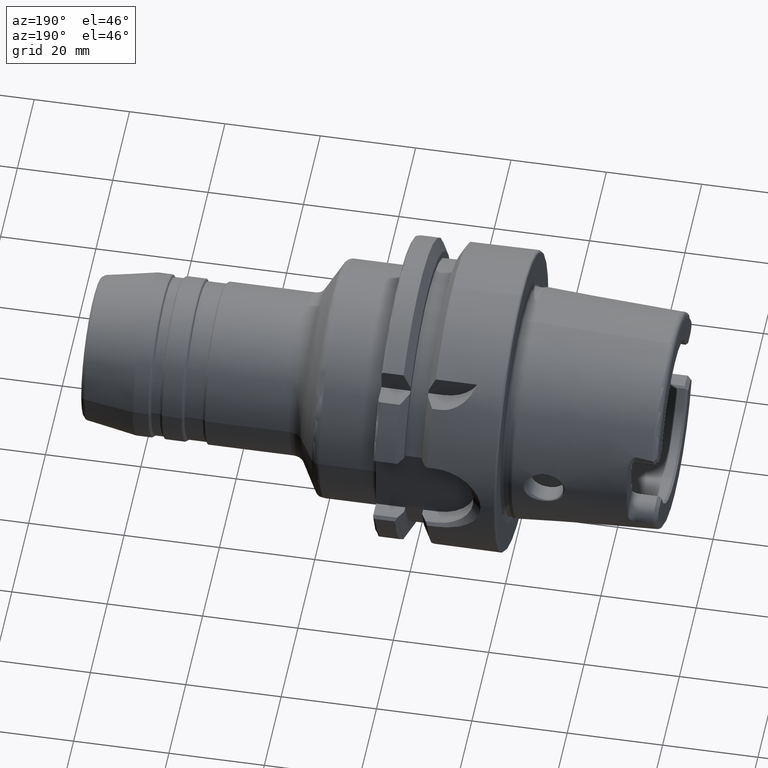
[diagram: clean part render]
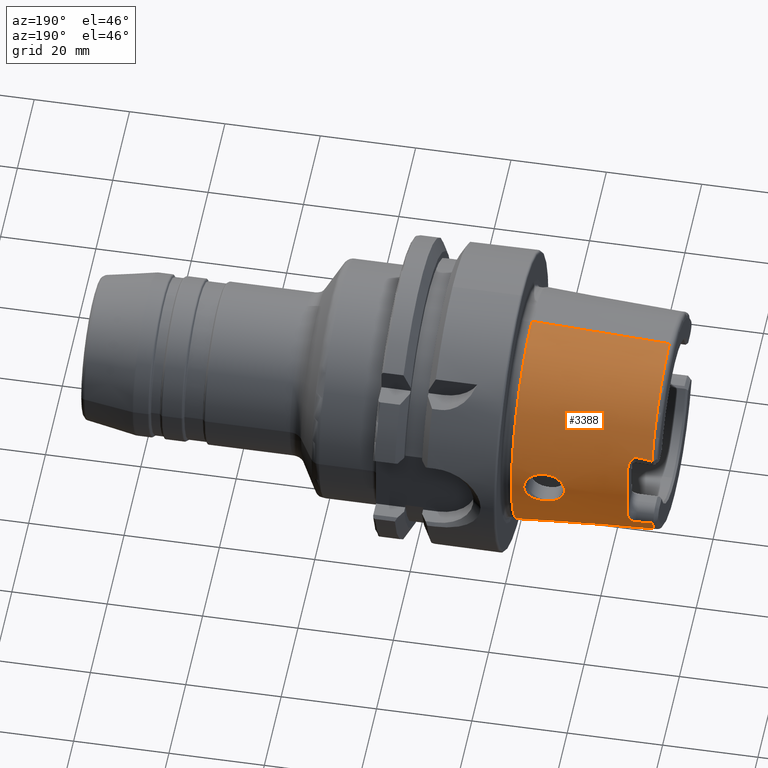
[diagram: same view with one face highlighted and labeled with its STEP entity id]
A machine part, auxiliary view. The second image highlights one B-rep face of the part: STEP entity #3388.
In plain terms, the highlighted conical surface has half-angle 2.868 deg.
Its self-contained STEP definition (entity closure, byte-faithful):
#2=CARTESIAN_POINT('',(-3.086004333271E1,0.E0,0.E0));
#3=DIRECTION('',(-1.E0,0.E0,0.E0));
#4=DIRECTION('',(0.E0,9.163649919573E-1,-4.003438540993E-1));
#5=AXIS2_PLACEMENT_3D('',#2,#3,#4);
#7=CARTESIAN_POINT('',(-2.000078966146E0,0.E0,0.E0));
#8=DIRECTION('',(-1.E0,0.E0,0.E0));
#9=DIRECTION('',(0.E0,0.E0,1.E0));
#10=AXIS2_PLACEMENT_3D('',#7,#8,#9);
#12=CARTESIAN_POINT('',(-3.086004333271E1,0.E0,0.E0));
#13=DIRECTION('',(-1.E0,0.E0,0.E0));
#14=DIRECTION('',(0.E0,0.E0,1.E0));
#15=AXIS2_PLACEMENT_3D('',#12,#13,#14);
#17=CARTESIAN_POINT('',(-3.086004333271E1,2.086981840766E1,9.117659021249E0));
#18=CARTESIAN_POINT('',(-3.053429817740E1,2.087026471920E1,9.157401052476E0));
#19=CARTESIAN_POINT('',(-2.990615519016E1,2.086951532374E1,9.237289499635E0));
#20=CARTESIAN_POINT('',(-2.903611322261E1,2.086332510594E1,9.358289114529E0));
#21=CARTESIAN_POINT('',(-2.823210310041E1,2.085175075012E1,9.481799081900E0));
#22=CARTESIAN_POINT('',(-2.773698367640E1,2.083998186508E1,9.567088298518E0));
#23=CARTESIAN_POINT('',(-2.75E1,2.083289994314E1,9.610781850025E0));
#25=CARTESIAN_POINT('',(-3.086004333271E1,2.086981840766E1,-9.117659021249E0));
#26=CARTESIAN_POINT('',(-3.053429817740E1,2.087026471920E1,-9.157401052476E0));
#27=CARTESIAN_POINT('',(-2.990615519016E1,2.086951532374E1,-9.237289499635E0));
#28=CARTESIAN_POINT('',(-2.903611322261E1,2.086332510594E1,-9.358289114529E0));
#29=CARTESIAN_POINT('',(-2.823210310041E1,2.085175075012E1,-9.481799081900E0));
#30=CARTESIAN_POINT('',(-2.773698367640E1,2.083998186508E1,-9.567088298518E0));
#31=CARTESIAN_POINT('',(-2.75E1,2.083289994314E1,-9.610781850025E0));
#33=CARTESIAN_POINT('',(-1.304439190524E1,2.366711362744E1,0.E0));
#34=CARTESIAN_POINT('',(-1.304439190524E1,2.366711362744E1,-2.690988907647E-1));
#35=CARTESIAN_POINT('',(-1.298599651443E1,2.366095917391E1,-7.910020920868E-1));
#36=CARTESIAN_POINT('',(-1.273675512849E1,2.363623552052E1,-1.536379946682E0));
#37=CARTESIAN_POINT('',(-1.234306243291E1,2.360179981962E1,-2.210377296945E0));
#38=CARTESIAN_POINT('',(-1.181743658175E1,2.356462198160E1,-2.802281496626E0));
#39=CARTESIAN_POINT('',(-1.117433138289E1,2.353301293034E1,-3.291372182471E0));
#40=CARTESIAN_POINT('',(-1.044577059813E1,2.351584643102E1,-3.652874664064E0));
#41=CARTESIAN_POINT('',(-9.666590564902E0,2.351945604486E1,-3.874549523137E0));
#42=CARTESIAN_POINT('',(-8.867903224944E0,2.354654497023E1,-3.954658103692E0));
#43=CARTESIAN_POINT('',(-8.065206114641E0,2.359748399871E1,-3.894330269435E0));
#44=CARTESIAN_POINT('',(-7.280372025904E0,2.366991712733E1,-3.694006666163E0));
#45=CARTESIAN_POINT('',(-6.522981028503E0,2.376100867010E1,-3.343365437428E0));
#46=CARTESIAN_POINT('',(-5.860119825251E0,2.385759844162E1,-2.865600308495E0));
#47=CARTESIAN_POINT('',(-5.310521793148E0,2.394916008236E1,-2.279035058229E0));
#48=CARTESIAN_POINT('',(-4.893716360325E0,2.402544678801E1,-1.606298979229E0));
#49=CARTESIAN_POINT('',(-4.618354997709E0,2.407905012444E1,-8.396036787063E-1));
#50=CARTESIAN_POINT('',(-4.550876813471E0,2.409262908457E1,-2.876724367468E-1));
#51=CARTESIAN_POINT('',(-4.550876813471E0,2.409262908457E1,0.E0));
#53=CARTESIAN_POINT('',(-4.550876813471E0,2.409262908457E1,0.E0));
#54=CARTESIAN_POINT('',(-4.550876813471E0,2.409262908457E1,2.858498615453E-1));
#55=CARTESIAN_POINT('',(-4.617564972402E0,2.407921087069E1,8.347726668711E-1));
#56=CARTESIAN_POINT('',(-4.889924532927E0,2.402617291227E1,1.597997312776E0));
#57=CARTESIAN_POINT('',(-5.304313549287E0,2.395025485001E1,2.270943293332E0));
#58=CARTESIAN_POINT('',(-5.853125359123E0,2.385868482995E1,2.859671457536E0));
#59=CARTESIAN_POINT('',(-6.517711231257E0,2.376169417119E1,3.340491599383E0));
#60=CARTESIAN_POINT('',(-7.276262265640E0,2.367034880713E1,3.692595893857E0));
#61=CARTESIAN_POINT('',(-8.061303062943E0,2.359778629055E1,3.893708346824E0));
#62=CARTESIAN_POINT('',(-8.864349067132E0,2.354671596204E1,3.954714246299E0));
#63=CARTESIAN_POINT('',(-9.663207927475E0,2.351951822382E1,3.875208720194E0));
#64=CARTESIAN_POINT('',(-1.044285384747E1,2.351581772743E1,3.653995462226E0));
#65=CARTESIAN_POINT('',(-1.117123170295E1,2.353290323009E1,3.293242280973E0));
#66=CARTESIAN_POINT('',(-1.181426229224E1,2.356443290841E1,2.805133325264E0));
#67=CARTESIAN_POINT('',(-1.234006695738E1,2.360156011828E1,2.214467694785E0));
#68=CARTESIAN_POINT('',(-1.273501671272E1,2.363606817959E1,1.540409794201E0));
#69=CARTESIAN_POINT('',(-1.298555882384E1,2.366091276101E1,7.936610274181E-1));
#70=CARTESIAN_POINT('',(-1.304439190524E1,2.366711362744E1,2.701153526977E-1));
#71=CARTESIAN_POINT('',(-1.304439190524E1,2.366711362744E1,0.E0));
#1165=DIRECTION('',(-9.987474310439E-1,-1.043894674249E-10,-5.003567710383E-2));
#1166=VECTOR('',#1165,2.889623723507E1);
#1167=CARTESIAN_POINT('',(-2.000000627352E0,3.013169918385E-9,
2.422041252602E1));
#1168=LINE('',#1167,#1166);
#1174=DIRECTION('',(-9.987474310439E-1,1.043904866109E-10,5.003567710383E-2));
#1175=VECTOR('',#1174,2.889623723507E1);
#1176=CARTESIAN_POINT('',(-2.000000627352E0,-3.013171792903E-9,
-2.422041252602E1));
#1177=LINE('',#1176,#1175);
#1377=CARTESIAN_POINT('',(-2.75E1,2.083289994314E1,-9.610781850025E0));
#1378=CARTESIAN_POINT('',(-2.743986965832E1,2.083110303293E1,
-9.621868302143E0));
#1379=CARTESIAN_POINT('',(-2.732008951427E1,2.083869366034E1,
-9.619767209227E0));
#1380=CARTESIAN_POINT('',(-2.713856575775E1,2.088477956394E1,
-9.541433969094E0));
#1381=CARTESIAN_POINT('',(-2.696814698306E1,2.095377192840E1,
-9.410044079173E0));
#1382=CARTESIAN_POINT('',(-2.680829162509E1,2.103539471848E1,
-9.246264644283E0));
#1383=CARTESIAN_POINT('',(-2.665338448931E1,2.112791975417E1,
-9.052815338201E0));
#1384=CARTESIAN_POINT('',(-2.650378037892E1,2.122992315678E1,
-8.830733077586E0));
#1385=CARTESIAN_POINT('',(-2.636314477416E1,2.133928779238E1,
-8.582299896796E0));
#1386=CARTESIAN_POINT('',(-2.623161567726E1,2.145859725778E1,
-8.298273409027E0));
#1387=CARTESIAN_POINT('',(-2.611523092977E1,2.158930903360E1,
-7.969601694850E0));
#1388=CARTESIAN_POINT('',(-2.602662702487E1,2.173129639659E1,
-7.588338493989E0));
#1389=CARTESIAN_POINT('',(-2.6E1,2.183154441882E1,-7.296650328159E0));
#1390=CARTESIAN_POINT('',(-2.6E1,2.188224159781E1,-7.141305064400E0));
#1406=CARTESIAN_POINT('',(-2.6E1,0.E0,0.E0));
#1407=DIRECTION('',(1.E0,0.E0,0.E0));
#1408=DIRECTION('',(0.E0,9.506556522061E-1,-3.102480151887E-1));
#1409=AXIS2_PLACEMENT_3D('',#1406,#1407,#1408);
#1435=CARTESIAN_POINT('',(-2.6E1,2.188224159781E1,7.141305064400E0));
#1436=CARTESIAN_POINT('',(-2.6E1,2.183966129453E1,7.271778762860E0));
#1437=CARTESIAN_POINT('',(-2.601878598565E1,2.175441354783E1,7.522103177891E0));
#1438=CARTESIAN_POINT('',(-2.608869506206E1,2.162729203475E1,7.869417878661E0));
#1439=CARTESIAN_POINT('',(-2.618639608418E1,2.150639538312E1,8.179791593466E0));
#1440=CARTESIAN_POINT('',(-2.630216036311E1,2.139249501547E1,8.457071522263E0));
#1441=CARTESIAN_POINT('',(-2.642940922877E1,2.128620877777E1,8.704000275899E0));
#1442=CARTESIAN_POINT('',(-2.656392634571E1,2.118763848204E1,8.923686803111E0));
#1443=CARTESIAN_POINT('',(-2.670424615715E1,2.109645150724E1,9.119274744524E0));
#1444=CARTESIAN_POINT('',(-2.684941860609E1,2.101321219926E1,9.291351153330E0));
#1445=CARTESIAN_POINT('',(-2.700415304313E1,2.093791424233E1,9.440787719721E0));
#1446=CARTESIAN_POINT('',(-2.716142554287E1,2.087799229066E1,9.553450081276E0));
#1447=CARTESIAN_POINT('',(-2.733094027763E1,2.083770262900E1,9.620610336348E0));
#1448=CARTESIAN_POINT('',(-2.744337264226E1,2.083120771465E1,9.621222444118E0));
#1449=CARTESIAN_POINT('',(-2.75E1,2.083289994314E1,9.610781850025E0));
#2864=CARTESIAN_POINT('',(-2.000078966146E0,0.E0,-2.422042115892E1));
#2865=CARTESIAN_POINT('',(-2.000078966146E0,0.E0,2.422042115892E1));
#2866=VERTEX_POINT('',#2864);
#2867=VERTEX_POINT('',#2865);
#3009=CARTESIAN_POINT('',(-2.6E1,2.188224159781E1,-7.141305064400E0));
#3011=VERTEX_POINT('',#3009);
#3013=CARTESIAN_POINT('',(-2.75E1,2.083289994314E1,-9.610781850025E0));
#3015=VERTEX_POINT('',#3013);
#3017=CARTESIAN_POINT('',(-2.75E1,2.083289994314E1,9.610781850025E0));
#3019=VERTEX_POINT('',#3017);
#3021=CARTESIAN_POINT('',(-2.6E1,2.188224159781E1,7.141305064400E0));
#3023=VERTEX_POINT('',#3021);
#3035=CARTESIAN_POINT('',(-3.086004333271E1,0.E0,-2.277456973022E1));
#3037=VERTEX_POINT('',#3035);
#3039=CARTESIAN_POINT('',(-3.086004333271E1,2.086981840766E1,
-9.117659021249E0));
#3040=VERTEX_POINT('',#3039);
#3041=CARTESIAN_POINT('',(-3.086004333271E1,0.E0,2.277456973022E1));
#3042=CARTESIAN_POINT('',(-3.086004333271E1,2.086981840766E1,9.117659021249E0));
#3043=VERTEX_POINT('',#3041);
#3044=VERTEX_POINT('',#3042);
#3107=VERTEX_POINT('',#33);
#3108=VERTEX_POINT('',#51);
#3355=CARTESIAN_POINT('',(-1.643002229390E1,0.E0,0.E0));
#3356=DIRECTION('',(1.E0,0.E0,0.E0));
#3357=DIRECTION('',(0.E0,0.E0,1.E0));
#3358=AXIS2_PLACEMENT_3D('',#3355,#3356,#3357);
#3359=CONICAL_SURFACE('',#3358,2.349749739118E1,2.86805556E0);
#3361=ORIENTED_EDGE('',*,*,#3360,.T.);
#3363=ORIENTED_EDGE('',*,*,#3362,.F.);
#3365=ORIENTED_EDGE('',*,*,#3364,.F.);
#3367=ORIENTED_EDGE('',*,*,#3366,.T.);
#3369=ORIENTED_EDGE('',*,*,#3368,.T.);
#3371=ORIENTED_EDGE('',*,*,#3370,.T.);
#3373=ORIENTED_EDGE('',*,*,#3372,.F.);
#3375=ORIENTED_EDGE('',*,*,#3374,.F.);
#3377=ORIENTED_EDGE('',*,*,#3376,.F.);
#3379=ORIENTED_EDGE('',*,*,#3378,.F.);
#3380=EDGE_LOOP('',(#3361,#3363,#3365,#3367,#3369,#3371,#3373,#3375,#3377,
#3379));
#3381=FACE_OUTER_BOUND('',#3380,.F.);
#3383=ORIENTED_EDGE('',*,*,#3382,.F.);
#3385=ORIENTED_EDGE('',*,*,#3384,.F.);
#3386=EDGE_LOOP('',(#3383,#3385));
#3387=FACE_BOUND('',#3386,.F.);
#3388=ADVANCED_FACE('',(#3381,#3387),#3359,.T.);
#6=CIRCLE('',#5,2.277456973022E1);
#11=CIRCLE('',#10,2.422042115892E1);
#16=CIRCLE('',#15,2.277456973022E1);
#24=B_SPLINE_CURVE_WITH_KNOTS('',3,(#17,#18,#19,#20,#21,#22,#23),.UNSPECIFIED.,
.F.,.F.,(4,1,1,1,4),(0.E0,2.5E-1,5.E-1,7.5E-1,1.E0),.UNSPECIFIED.);
#32=B_SPLINE_CURVE_WITH_KNOTS('',3,(#25,#26,#27,#28,#29,#30,#31),.UNSPECIFIED.,
.F.,.F.,(4,1,1,1,4),(0.E0,2.5E-1,5.E-1,7.5E-1,1.E0),.UNSPECIFIED.);
#52=B_SPLINE_CURVE_WITH_KNOTS('',3,(#33,#34,#35,#36,#37,#38,#39,#40,#41,#42,#43,
#44,#45,#46,#47,#48,#49,#50,#51),.UNSPECIFIED.,.F.,.F.,(4,1,1,1,1,1,1,1,1,1,1,1,
1,1,1,1,4),(0.E0,6.25E-2,1.25E-1,1.875E-1,2.5E-1,3.125E-1,3.75E-1,4.375E-1,
5.E-1,5.625E-1,6.25E-1,6.875E-1,7.5E-1,8.125E-1,8.75E-1,9.375E-1,1.E0),
.UNSPECIFIED.);
#72=B_SPLINE_CURVE_WITH_KNOTS('',3,(#53,#54,#55,#56,#57,#58,#59,#60,#61,#62,#63,
#64,#65,#66,#67,#68,#69,#70,#71),.UNSPECIFIED.,.F.,.F.,(4,1,1,1,1,1,1,1,1,1,1,1,
1,1,1,1,4),(0.E0,6.25E-2,1.25E-1,1.875E-1,2.5E-1,3.125E-1,3.75E-1,4.375E-1,
5.E-1,5.625E-1,6.25E-1,6.875E-1,7.5E-1,8.125E-1,8.75E-1,9.375E-1,1.E0),
.UNSPECIFIED.);
#1391=B_SPLINE_CURVE_WITH_KNOTS('',3,(#1377,#1378,#1379,#1380,#1381,#1382,#1383,
#1384,#1385,#1386,#1387,#1388,#1389,#1390),.UNSPECIFIED.,.F.,.F.,(4,1,1,1,1,1,1,
1,1,1,1,4),(0.E0,9.090909090909E-2,1.818181818182E-1,2.727272727273E-1,
3.636363636364E-1,4.545454545455E-1,5.454545454545E-1,6.363636363636E-1,
7.272727272727E-1,8.181818181818E-1,9.090909090909E-1,1.E0),.UNSPECIFIED.);
#1410=CIRCLE('',#1409,2.301805237998E1);
#1450=B_SPLINE_CURVE_WITH_KNOTS('',3,(#1435,#1436,#1437,#1438,#1439,#1440,#1441,
#1442,#1443,#1444,#1445,#1446,#1447,#1448,#1449),.UNSPECIFIED.,.F.,.F.,(4,1,1,1,
1,1,1,1,1,1,1,1,4),(0.E0,8.333333333333E-2,1.666666666667E-1,2.5E-1,
3.333333333333E-1,4.166666666667E-1,5.E-1,5.833333333333E-1,6.666666666667E-1,
7.5E-1,8.333333333333E-1,9.166666666667E-1,1.E0),.UNSPECIFIED.);
#3360=EDGE_CURVE('',#3040,#3037,#6,.T.);
#3362=EDGE_CURVE('',#2866,#3037,#1177,.T.);
#3364=EDGE_CURVE('',#2867,#2866,#11,.T.);
#3366=EDGE_CURVE('',#2867,#3043,#1168,.T.);
#3368=EDGE_CURVE('',#3043,#3044,#16,.T.);
#3370=EDGE_CURVE('',#3044,#3019,#24,.T.);
#3372=EDGE_CURVE('',#3023,#3019,#1450,.T.);
#3374=EDGE_CURVE('',#3011,#3023,#1410,.T.);
#3376=EDGE_CURVE('',#3015,#3011,#1391,.T.);
#3378=EDGE_CURVE('',#3040,#3015,#32,.T.);
#3382=EDGE_CURVE('',#3107,#3108,#52,.T.);
#3384=EDGE_CURVE('',#3108,#3107,#72,.T.);